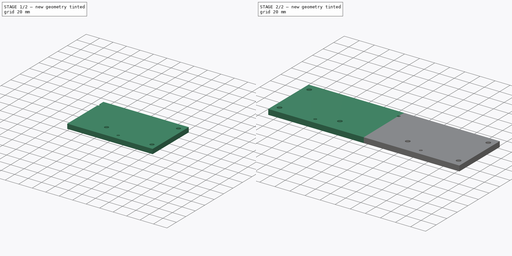
[diagram: build sequence overview — one tinted view per stage of 2, left to right]
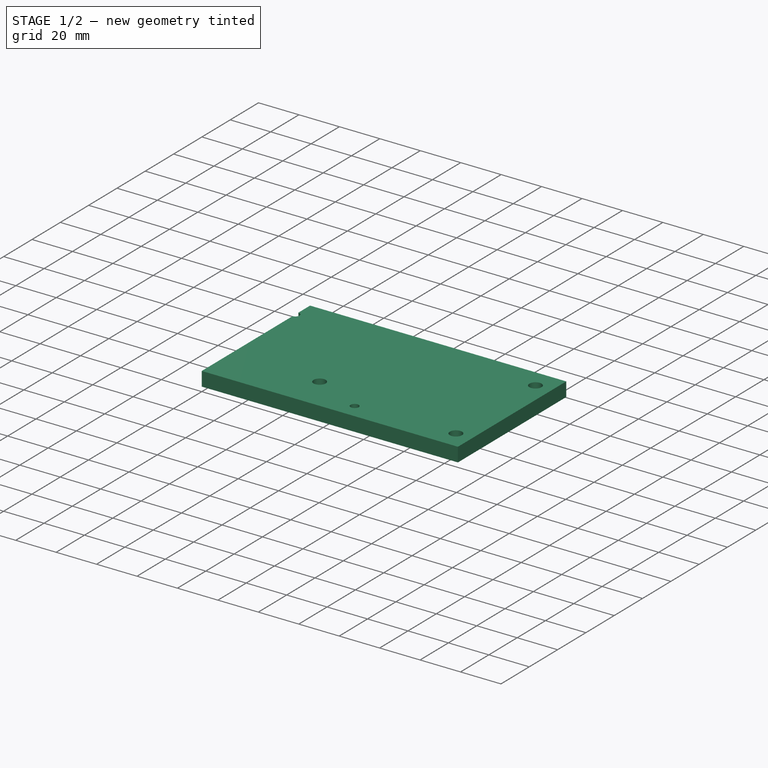
[diagram: stage 1 of 2 — iso view after this stage's code; geometry added in this stage tinted green]
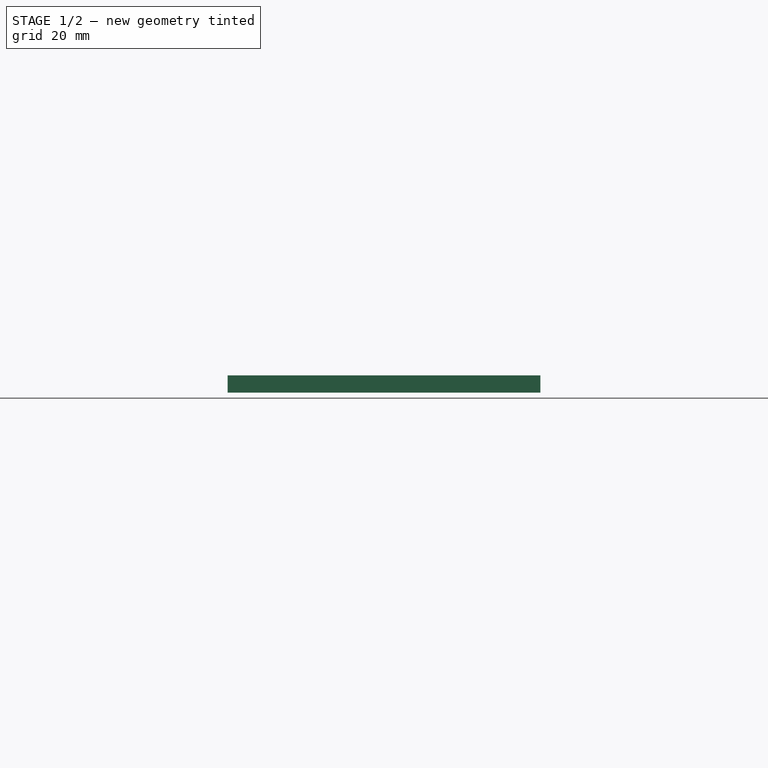
[diagram: stage 1 of 2 — front view after this stage's code; geometry added in this stage tinted green]
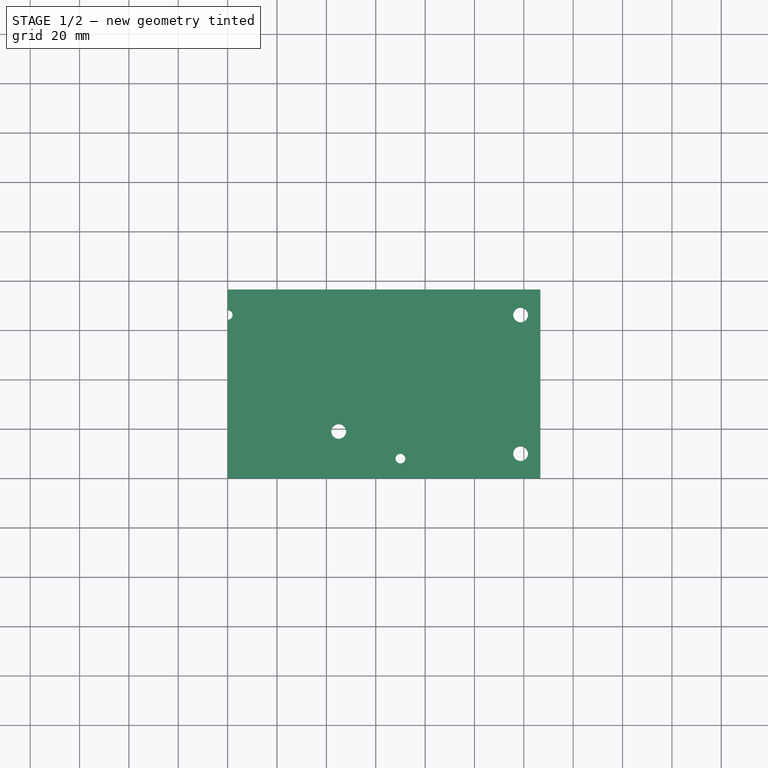
[diagram: stage 1 of 2 — top view after this stage's code; geometry added in this stage tinted green]
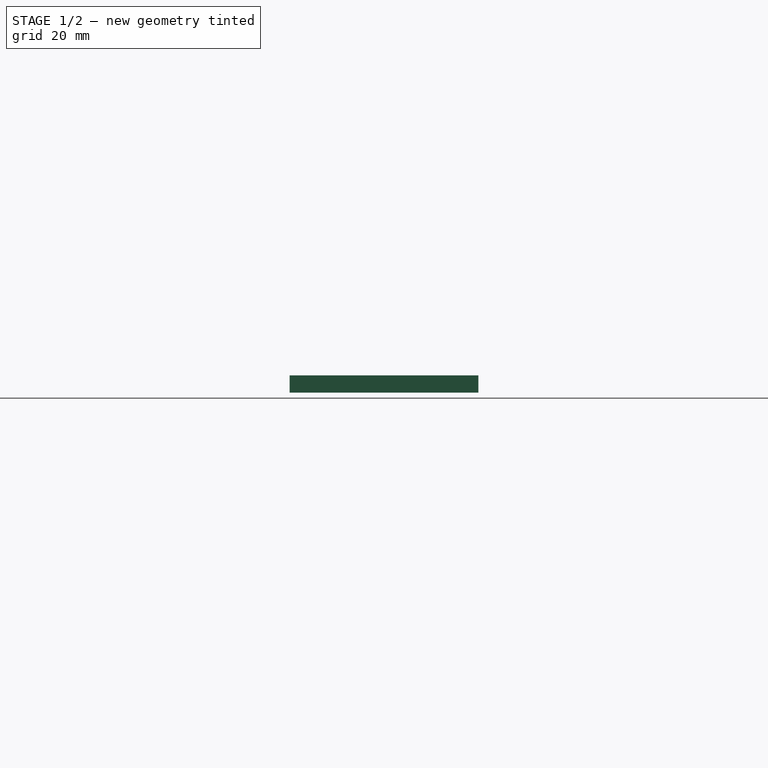
[diagram: stage 1 of 2 — right view after this stage's code; geometry added in this stage tinted green]
FCSTD DOCUMENT  (FreeCAD 0.15R4606 (Git))
Label: crossbeam
License: All rights reserved
LicenseURL: http://en.wikipedia.org/wiki/All_rights_reserved
objects: Sketcher::SketchObject×2, PartDesign::Pad×1, PartDesign::Pocket×1, Part::Mirroring×1, Part::MultiFuse×1
note: 8 computed .brp shape members not serialized (recipe doc carries the construction recipe); baked Part::Feature solids carry a one-line shape summary decoded from their .brp

FEATURE [Sketcher::SketchObject] Sketch
  sketch-geometry (4):
    g0: LineSegment StartX=0 StartY=76.5 StartZ=0 EndX=126.7 EndY=76.5 EndZ=0
    g1: LineSegment StartX=126.7 StartY=76.5 StartZ=0 EndX=126.7 EndY=0 EndZ=0
    g2: LineSegment StartX=126.7 StartY=0 StartZ=0 EndX=0 EndY=0 EndZ=0
    g3: LineSegment StartX=0 StartY=0 StartZ=0 EndX=0 EndY=76.5 EndZ=0
  constraints (11):
    c: Coincident(g0,g1)
    c: Coincident(g1,g2)
    c: Coincident(g2,g3)
    c: Coincident(g3,g0)
    c: Horizontal(g0)
    c: Horizontal(g2)
    c: Vertical(g1)
    c: Vertical(g3)
    c: Coincident(g2,g-1)
    c: Distance(g3) = 76.5
    c: Distance(g2) = 126.7
FEATURE [PartDesign::Pad] Pad
  Length = 7
  Length2 = 100
  Sketch = -> Sketch
  Type = 0
FEATURE [Sketcher::SketchObject] Sketch001
  Placement = pos=(0,0,7) rot=(0,0,1;0rad)
  Support = -> Pad [Face6]
  sketch-geometry (5):
    g0: Circle CenterX=0 CenterY=66.2 CenterZ=0 NormalX=0 NormalY=0 NormalZ=1 Radius=2
    g1: Circle CenterX=70 CenterY=8 CenterZ=0 NormalX=0 NormalY=0 NormalZ=1 Radius=2
    g2: Circle CenterX=118.7 CenterY=66.2 CenterZ=0 NormalX=0 NormalY=0 NormalZ=1 Radius=3
    g3: Circle CenterX=118.7 CenterY=10 CenterZ=0 NormalX=0 NormalY=0 NormalZ=1 Radius=3
    g4: Circle CenterX=45 CenterY=19 CenterZ=0 NormalX=0 NormalY=0 NormalZ=1 Radius=3
  constraints (15):
    c: PointOnObject(g0,g-2)
    c: Radius(g0) = 2
    c: Radius(g2) = 3
    c: Radius(g3) = 3
    c: Radius(g1) = 2
    c: DistanceX(g2,g3) = 0
    c: DistanceX(g-1,g3) = 118.7
    c: DistanceY(g-1,g3) = 10
    c: DistanceY(g3,g2) = 56.2
    c: DistanceY(g-1,g0) = 66.2
    c: DistanceY(g-1,g1) = 8
    c: DistanceX(g-1,g1) = 70
    c: DistanceX(g-1,g4) = 45
    c: Radius(g4) = 3
    c: DistanceY(g-1,g4) = 19
FEATURE [PartDesign::Pocket] Pocket
  Length = 50
  Sketch = -> Sketch001
  Type = 0
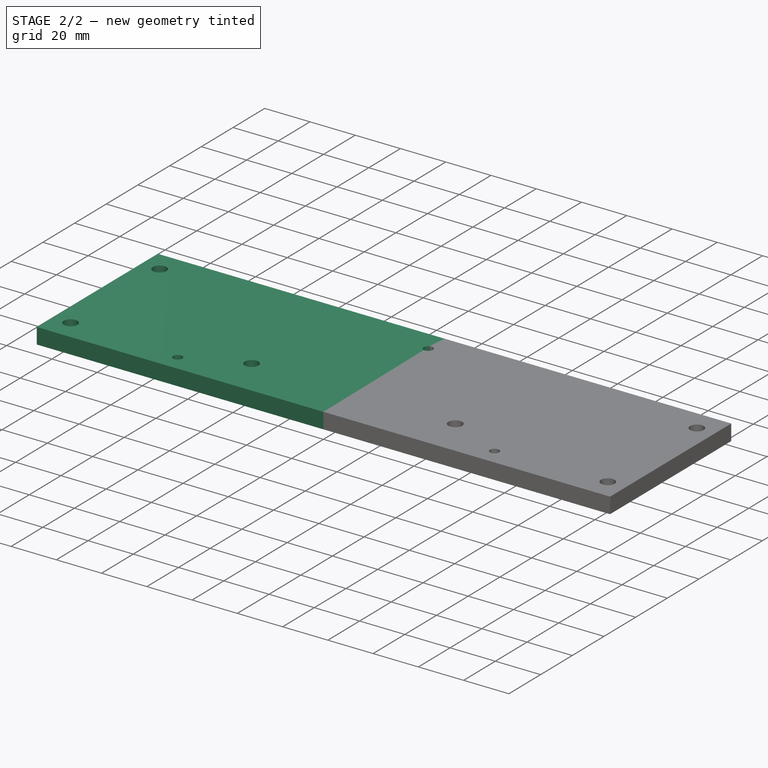
[diagram: stage 2 of 2 — iso view after this stage's code; geometry added in this stage tinted green]
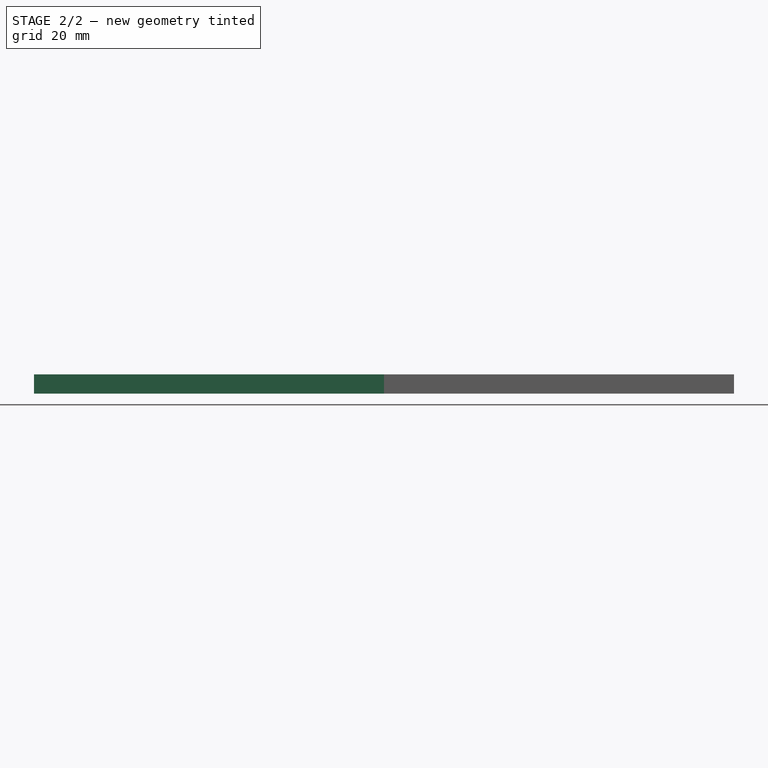
[diagram: stage 2 of 2 — front view after this stage's code; geometry added in this stage tinted green]
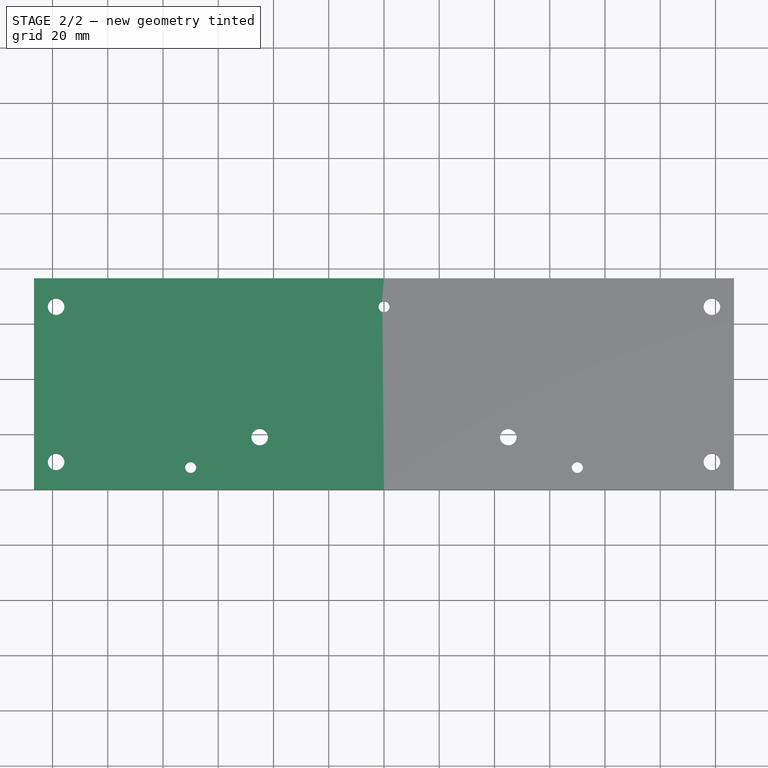
[diagram: stage 2 of 2 — top view after this stage's code; geometry added in this stage tinted green]
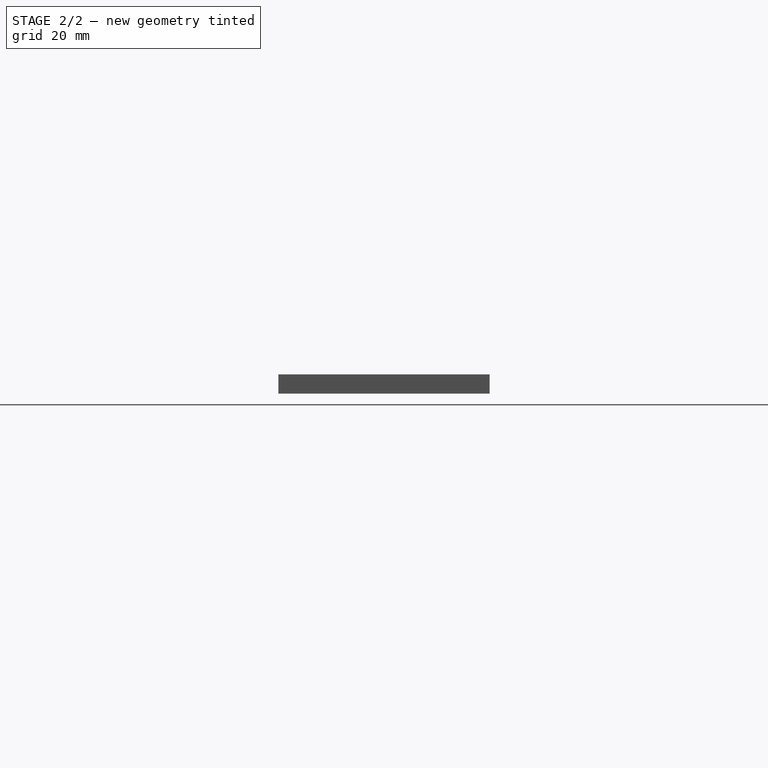
[diagram: stage 2 of 2 — right view after this stage's code; geometry added in this stage tinted green]
FEATURE [Part::Mirroring] Part__Mirroring  label="Pocket (Mirror #1)"
  Base = (0,0,0)
  Normal = (1,0,0)
  Source = -> Pocket
FEATURE [Part::MultiFuse] Fusion
  Shapes = -> [Part__Mirroring,Pocket]
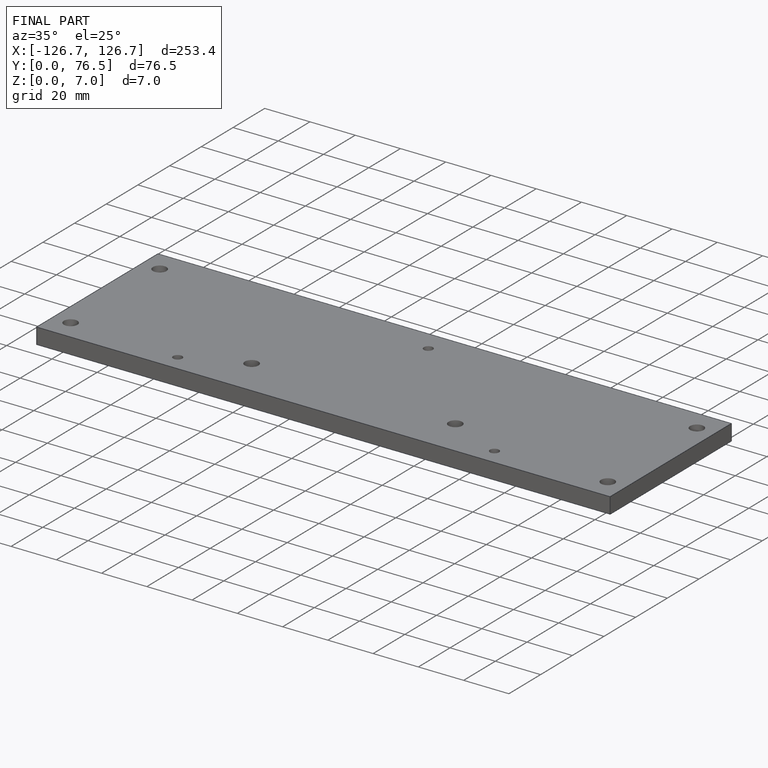
[diagram: finished part — iso view with bounding-box wireframe]
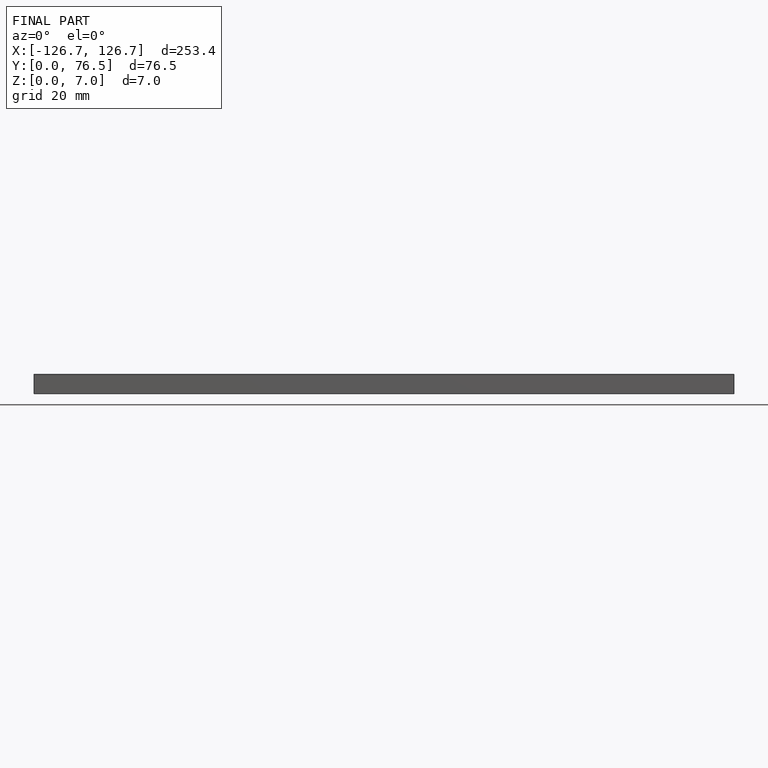
[diagram: finished part — front view with bounding-box wireframe]
